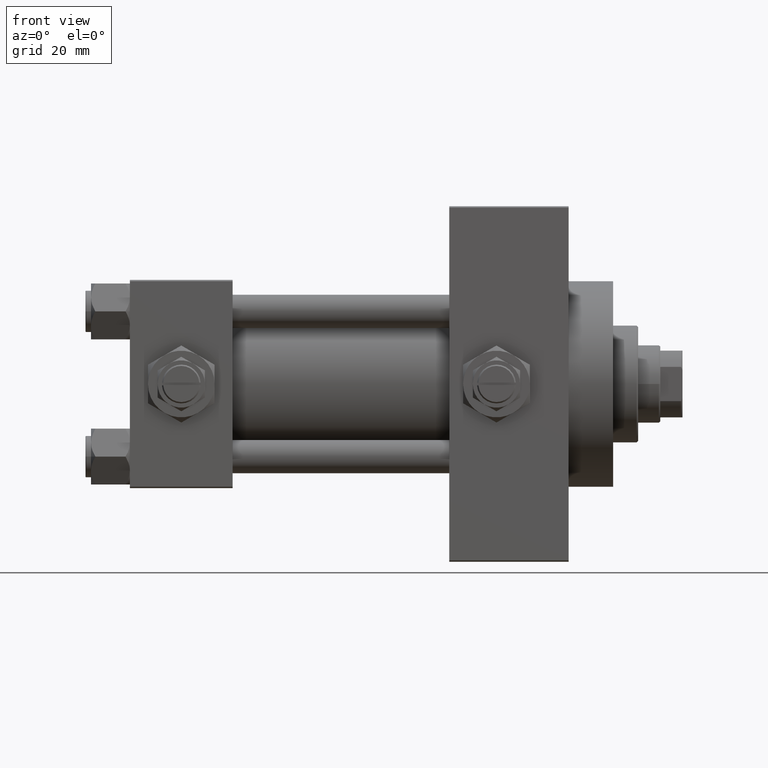
[diagram: clean part render]
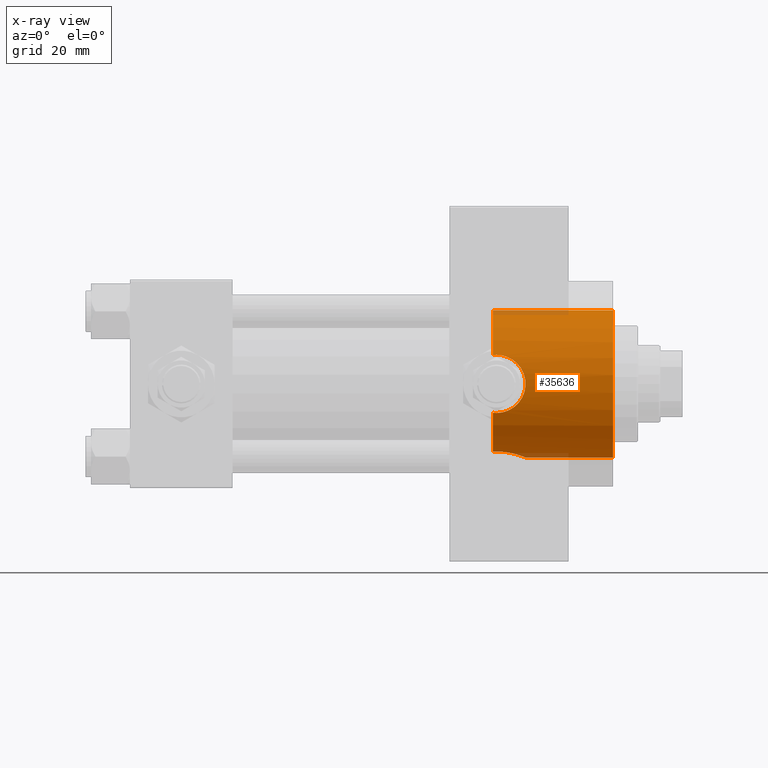
[diagram: x-ray — body ghosted, one internal face saturated and labeled with its STEP entity id]
A machine part, front view, then the same camera in x-ray: the body is ghosted and one INTERNAL B-rep face — a face not visible from any outside direction — is saturated and labeled: STEP entity #35636.
In plain terms, the highlighted cylindrical surface (partial cylindrical patch) has radius 26.5 mm, axis along (1, 0, 0).
Its self-contained STEP definition (entity closure, byte-faithful):
#663 = CARTESIAN_POINT ( 'NONE',  ( 132.6982936874238703, -24.33967132070605288, 10.47999999999998799 ) ) ;
#683 = EDGE_CURVE ( 'NONE', #21776, #11740, #10768, .T. ) ;
#907 = CARTESIAN_POINT ( 'NONE',  ( 139.8850942087586304, -25.58093385762821725, 6.936447548980003042 ) ) ;
#1154 = CARTESIAN_POINT ( 'NONE',  ( 141.5385175848663266, -26.14168889184969657, 4.354785931857517056 ) ) ;
#1799 = DIRECTION ( 'NONE',  ( 1.000000000000000000, 0.000000000000000000, 0.000000000000000000 ) ) ;
#1816 = CARTESIAN_POINT ( 'NONE',  ( 138.3983008714430412, -8.308216825530742256, -25.16494175890555596 ) ) ;
#2058 = CARTESIAN_POINT ( 'NONE',  ( 142.1654842721634111, -2.575241489874372736, -26.37710048711162969 ) ) ;
#2429 = CYLINDRICAL_SURFACE ( 'NONE', #4504, 26.50000000000000355 ) ;
#2806 = CARTESIAN_POINT ( 'NONE',  ( 135.5115735695664227, -9.881194972351261541, -24.58915736193083390 ) ) ;
#3183 = CARTESIAN_POINT ( 'NONE',  ( 137.2635990777562256, -24.90054338428140568, -9.068796382691630242 ) ) ;
#3672 = CARTESIAN_POINT ( 'NONE',  ( 134.7461877943154036, -24.48462605612511567, -10.13781324604277145 ) ) ;
#4232 = CARTESIAN_POINT ( 'NONE',  ( 174.0000000000000000, 3.245314017740486554E-15, 26.50000000000000355 ) ) ;
#4504 = AXIS2_PLACEMENT_3D ( 'NONE', #13900, #24856, #40570 ) ;
#4625 = ORIENTED_EDGE ( 'NONE', *, *, #28336, .F. ) ;
#5141 = CARTESIAN_POINT ( 'NONE',  ( 142.1219222710722647, -26.36027543327035261, 2.738055544399092600 ) ) ;
#5803 = CARTESIAN_POINT ( 'NONE',  ( 142.4011065554137758, -1.483758503940583839, -26.46850309434598003 ) ) ;
#6045 = CARTESIAN_POINT ( 'NONE',  ( 136.5335921408433251, -9.455792512420339690, -24.75606841526505519 ) ) ;
#6119 = EDGE_LOOP ( 'NONE', ( #4625, #30557, #43660, #33916, #21602, #32575, #41552, #26521, #41877 ) ) ;
#6292 = CARTESIAN_POINT ( 'NONE',  ( 141.3963988635402700, -4.655434592126345805, -26.09007526830297863 ) ) ;
#6543 = CARTESIAN_POINT ( 'NONE',  ( 135.8600678267363833, -9.750145953289925060, -24.64162310621548713 ) ) ;
#6794 = AXIS2_PLACEMENT_3D ( 'NONE', #20408, #28133, #12702 ) ;
#7411 = CARTESIAN_POINT ( 'NONE',  ( 139.6501220615577097, -25.51256335955728005, -7.170912732211439433 ) ) ;
#7897 = CARTESIAN_POINT ( 'NONE',  ( 136.3489237122697659, -24.72318467201153425, -9.541179571695405315 ) ) ;
#8116 = B_SPLINE_CURVE_WITH_KNOTS ( 'NONE', 3,
 ( #22462, #45406, #14505, #33689 ),
 .UNSPECIFIED., .F., .F.,
 ( 4, 4 ),
 ( 0.000000000000000000, 0.001255586767787714641 ),
 .UNSPECIFIED. ) ;
#8639 = CARTESIAN_POINT ( 'NONE',  ( 141.9191483855533988, -26.28308039691835774, 3.400110870430087306 ) ) ;
#9205 = DIRECTION ( 'NONE',  ( 1.000000000000000000, 0.000000000000000000, 0.000000000000000000 ) ) ;
#9451 = DIRECTION ( 'NONE',  ( 0.000000000000000000, 0.000000000000000000, -1.000000000000000000 ) ) ;
#9573 = CARTESIAN_POINT ( 'NONE',  ( 130.7400000000000091, -24.37226292324946542, -10.40398000767012299 ) ) ;
#9913 = CIRCLE ( 'NONE', #22637, 26.50000000000000355 ) ;
#10411 = CARTESIAN_POINT ( 'NONE',  ( 142.4800000000001603, 1.044554930096985600E-14, -26.50000000000006750 ) ) ;
#10768 = B_SPLINE_CURVE_WITH_KNOTS ( 'NONE', 3,
 ( #36941, #32718, #5803, #2058, #40449, #47922, #35961, #6292, #13783, #48414, #33212, #40195, #17268, #20751, #1816, #20991, #43692, #36455, #6045, #6543, #2806, #28982, #17023, #29474, #36699, #28485 ),
 .UNSPECIFIED., .F., .F.,
 ( 4, 2, 2, 2, 2, 2, 2, 2, 2, 2, 2, 2, 4 ),
 ( 0.01781170071191079049, 0.02003745927526348961, 0.02115033855693983916, 0.02226321783861619219, 0.02337609712029254175, 0.02448897640196889131, 0.02671473496532159389, 0.02782761424699794345, 0.02894049352867429648, 0.03005337281035064950, 0.03116625209202700253, 0.03339201065537962532, 0.03561776921873225504 ),
 .UNSPECIFIED. ) ;
#11398 = CARTESIAN_POINT ( 'NONE',  ( 139.8811664359166400, -25.58300917221410486, -6.916171625962123315 ) ) ;
#11648 = CARTESIAN_POINT ( 'NONE',  ( 140.5155153844949893, -25.78569419426081311, -6.118106053452856408 ) ) ;
#11740 = VERTEX_POINT ( 'NONE', #39025 ) ;
#12142 = CARTESIAN_POINT ( 'NONE',  ( 142.3935590552673602, -26.46591511510092332, -1.387412420731378715 ) ) ;
#12522 = CARTESIAN_POINT ( 'NONE',  ( 174.0000000000000000, 0.000000000000000000, -26.50000000000000355 ) ) ;
#12635 = CARTESIAN_POINT ( 'NONE',  ( 141.0679913760332624, -25.97354752128885025, 5.264851845784581208 ) ) ;
#12654 = AXIS2_PLACEMENT_3D ( 'NONE', #23986, #1799, #20487 ) ;
#12702 = DIRECTION ( 'NONE',  ( 0.000000000000000000, 0.000000000000000000, -1.000000000000000000 ) ) ;
#13150 = CARTESIAN_POINT ( 'NONE',  ( 131.1580741051582208, -24.35064928096444703, 10.45461191700780645 ) ) ;
#13783 = CARTESIAN_POINT ( 'NONE',  ( 141.2276638786151750, -4.981583166679961039, -26.02957788900645397 ) ) ;
#13900 = CARTESIAN_POINT ( 'NONE',  ( 130.7400000000000091, 0.000000000000000000, 0.000000000000000000 ) ) ;
#13946 = VECTOR ( 'NONE', #47309, 1000.000000000000000 ) ;
#14505 = CARTESIAN_POINT ( 'NONE',  ( 131.5811236364006049, -24.33967132070604933, -10.47999999999998444 ) ) ;
#14893 = CARTESIAN_POINT ( 'NONE',  ( 136.6580558779861008, -24.77960996754317691, -9.394203453174519325 ) ) ;
#15468 = EDGE_CURVE ( 'NONE', #28709, #47532, #8116, .T. ) ;
#15877 = CARTESIAN_POINT ( 'NONE',  ( 142.4114040688937735, -26.47265107862980926, 1.382412405478187001 ) ) ;
#16029 = CARTESIAN_POINT ( 'NONE',  ( 132.0000000000000000, -24.33967132070604933, 10.47999999999998799 ) ) ;
#16122 = CARTESIAN_POINT ( 'NONE',  ( 138.3864792908362631, -25.16230905708523480, 8.316254619809530624 ) ) ;
#16366 = CARTESIAN_POINT ( 'NONE',  ( 141.3916535229813576, -26.08830885934474253, 4.663043711798783519 ) ) ;
#16576 = VERTEX_POINT ( 'NONE', #23506 ) ;
#16614 = CARTESIAN_POINT ( 'NONE',  ( 134.7286532048194090, -24.48994387988090438, 10.12445329003760008 ) ) ;
#16633 = CIRCLE ( 'NONE', #12654, 26.50000000000000355 ) ;
#17023 = CARTESIAN_POINT ( 'NONE',  ( 133.7216423275558839, -10.36418010715236093, -24.38933169417625635 ) ) ;
#17268 = CARTESIAN_POINT ( 'NONE',  ( 139.5076201536012093, -7.348534936426551312, -25.46581292754183679 ) ) ;
#17633 = FACE_OUTER_BOUND ( 'NONE', #6119, .T. ) ;
#18330 = EDGE_CURVE ( 'NONE', #21776, #26977, #46587, .T. ) ;
#18867 = CARTESIAN_POINT ( 'NONE',  ( 137.5577538920436496, -24.96463143003449758, -8.891425016462831010 ) ) ;
#19162 = EDGE_CURVE ( 'NONE', #49088, #26977, #37030, .T. ) ;
#19603 = CARTESIAN_POINT ( 'NONE',  ( 142.1391112229687792, -26.36675217432884466, -2.738755341944245636 ) ) ;
#20096 = CARTESIAN_POINT ( 'NONE',  ( 136.6659000583123031, -24.77500862834707362, 9.408993987884874954 ) ) ;
#20408 = CARTESIAN_POINT ( 'NONE',  ( 174.0000000000000000, 0.000000000000000000, 0.000000000000000000 ) ) ;
#20487 = DIRECTION ( 'NONE',  ( 0.000000000000000000, 0.000000000000000000, -1.000000000000000000 ) ) ;
#20612 = CARTESIAN_POINT ( 'NONE',  ( 130.7400000000000091, -24.37226292324946186, 10.40398000767012654 ) ) ;
#20751 = CARTESIAN_POINT ( 'NONE',  ( 138.6874981071936759, -8.077221093107572969, -25.24030799844106454 ) ) ;
#20821 = CARTESIAN_POINT ( 'NONE',  ( 130.7400000000000091, 3.245314017740486554E-15, 26.50000000000000355 ) ) ;
#20991 = CARTESIAN_POINT ( 'NONE',  ( 137.8022832347253086, -8.734885810676995987, -25.02004257437574708 ) ) ;
#21602 = ORIENTED_EDGE ( 'NONE', *, *, #683, .T. ) ;
#21776 = VERTEX_POINT ( 'NONE', #10411 ) ;
#21947 = VERTEX_POINT ( 'NONE', #20821 ) ;
#22113 = CARTESIAN_POINT ( 'NONE',  ( 132.6904960883777846, -24.33967132070604578, -10.47999999999998622 ) ) ;
#22462 = CARTESIAN_POINT ( 'NONE',  ( 130.7400000000000091, -24.37226292324946542, -10.40398000767012299 ) ) ;
#22637 = AXIS2_PLACEMENT_3D ( 'NONE', #28147, #9205, #9451 ) ;
#23506 = CARTESIAN_POINT ( 'NONE',  ( 130.7400000000000091, -24.37226292324946186, 10.40398000767012654 ) ) ;
#23830 = CARTESIAN_POINT ( 'NONE',  ( 138.9147507852791534, -25.30155050139244111, 7.882476147205575323 ) ) ;
#23986 = CARTESIAN_POINT ( 'NONE',  ( 130.7400000000000091, 0.000000000000000000, 0.000000000000000000 ) ) ;
#24080 = CARTESIAN_POINT ( 'NONE',  ( 142.4626037639855838, -26.49310609510638770, -0.6963515910539429532 ) ) ;
#24357 = CARTESIAN_POINT ( 'NONE',  ( 132.0000000000000000, -24.33967132070604933, 10.47999999999998799 ) ) ;
#24856 = DIRECTION ( 'NONE',  ( 1.000000000000000000, -0.000000000000000000, -0.000000000000000000 ) ) ;
#26005 = B_SPLINE_CURVE_WITH_KNOTS ( 'NONE', 3,
 ( #41071, #22113, #37570, #3672, #37321, #7897, #14893, #3183, #18867, #45792, #26342, #7411, #11398, #26582, #11648, #41793, #42043, #39291, #19603, #31324, #12142, #24080, #47017, #34816, #15877, #42789, #5141, #8639, #27079, #1154, #16366, #12635, #43035, #31576, #907, #46776, #23830, #16122, #30831, #46280, #20096, #35311, #46040, #16614, #28068, #39046, #663, #27822 ),
 .UNSPECIFIED., .F., .F.,
 ( 4, 2, 2, 2, 2, 2, 2, 2, 2, 2, 2, 2, 2, 2, 2, 2, 2, 2, 2, 2, 2, 2, 2, 4 ),
 ( 0.001255586767787714641, 0.003325356817179755085, 0.005395126866571796180, 0.006430011891267852289, 0.007464896915963908398, 0.009534666965355952095, 0.01056955199005197438, 0.01160443701474799492, 0.01367420706413999265, 0.01574397711353198864, 0.01677886213822798664, 0.01781374716292398463, 0.01988351721231598410, 0.02091840223701198556, 0.02195328726170798356, 0.02298817228640397808, 0.02402305731109997608, 0.02609282736049197207, 0.02712771238518797007, 0.02816259740988396806, 0.03023236745927596406, 0.03126725248397199675, 0.03230213750866803291, 0.03437190755806009829 ),
 .UNSPECIFIED. ) ;
#26342 = CARTESIAN_POINT ( 'NONE',  ( 138.9276451403626993, -25.30216499957183984, -7.893159106980509598 ) ) ;
#26521 = ORIENTED_EDGE ( 'NONE', *, *, #40664, .T. ) ;
#26582 = CARTESIAN_POINT ( 'NONE',  ( 140.3132647636415413, -25.71940794313461254, -6.390292897823897533 ) ) ;
#26977 = VERTEX_POINT ( 'NONE', #12522 ) ;
#27079 = CARTESIAN_POINT ( 'NONE',  ( 141.8022638174866472, -26.23907308479209988, 3.723318718764343949 ) ) ;
#27822 = CARTESIAN_POINT ( 'NONE',  ( 132.0000000000000000, -24.33967132070604933, 10.47999999999998799 ) ) ;
#28068 = CARTESIAN_POINT ( 'NONE',  ( 134.3947302122628287, -24.45488967133339386, 10.20851256290625741 ) ) ;
#28133 = DIRECTION ( 'NONE',  ( 1.000000000000000000, 0.000000000000000000, 0.000000000000000000 ) ) ;
#28147 = CARTESIAN_POINT ( 'NONE',  ( 130.7400000000000091, 0.000000000000000000, 0.000000000000000000 ) ) ;
#28336 = EDGE_CURVE ( 'NONE', #21947, #16576, #9913, .T. ) ;
#28485 = CARTESIAN_POINT ( 'NONE',  ( 130.7400000000000091, -10.40398000767012832, -24.37226292324946186 ) ) ;
#28709 = VERTEX_POINT ( 'NONE', #9573 ) ;
#28982 = CARTESIAN_POINT ( 'NONE',  ( 134.4459359432478323, -10.21777125531389174, -24.45211332338677579 ) ) ;
#29474 = CARTESIAN_POINT ( 'NONE',  ( 132.2451057705677329, -10.50334255171939013, -24.32972513250578928 ) ) ;
#30557 = ORIENTED_EDGE ( 'NONE', *, *, #48554, .T. ) ;
#30831 = CARTESIAN_POINT ( 'NONE',  ( 138.1110651716822701, -25.09360970262139645, 8.520611273842991551 ) ) ;
#31020 = DIRECTION ( 'NONE',  ( 1.000000000000000000, -0.000000000000000000, -0.000000000000000000 ) ) ;
#31324 = CARTESIAN_POINT ( 'NONE',  ( 142.3421836049517140, -26.44572692659851754, -1.728475508984261610 ) ) ;
#31519 = LINE ( 'NONE', #45987, #39041 ) ;
#31576 = CARTESIAN_POINT ( 'NONE',  ( 140.3165002292777785, -25.71874665637611912, 6.413821170274206729 ) ) ;
#31611 = VERTEX_POINT ( 'NONE', #16029 ) ;
#32114 = CARTESIAN_POINT ( 'NONE',  ( 130.7400000000000091, 0.000000000000000000, -26.50000000000000355 ) ) ;
#32575 = ORIENTED_EDGE ( 'NONE', *, *, #41397, .F. ) ;
#32718 = CARTESIAN_POINT ( 'NONE',  ( 142.4800000000000466, -0.7466733969459936615, -26.50000000000001421 ) ) ;
#33212 = CARTESIAN_POINT ( 'NONE',  ( 140.6508763872861323, -5.926808359427509387, -25.83050513016100069 ) ) ;
#33689 = CARTESIAN_POINT ( 'NONE',  ( 132.0000000000000000, -24.33967132070604933, -10.47999999999998444 ) ) ;
#33916 = ORIENTED_EDGE ( 'NONE', *, *, #18330, .F. ) ;
#34774 = EDGE_CURVE ( 'NONE', #31611, #16576, #40853, .T. ) ;
#34816 = CARTESIAN_POINT ( 'NONE',  ( 142.4798633477534224, -26.49994595790487750, 0.6963870350870441372 ) ) ;
#35311 = CARTESIAN_POINT ( 'NONE',  ( 135.7173844672076939, -24.61993612039166024, 9.804529592362708712 ) ) ;
#35636 = ADVANCED_FACE ( 'NONE', ( #17633 ), #2429, .F. ) ;
#35961 = CARTESIAN_POINT ( 'NONE',  ( 141.6993435614955956, -3.985990130492289563, -26.20070574291654353 ) ) ;
#36455 = CARTESIAN_POINT ( 'NONE',  ( 136.8603660912149849, -9.291949300782544441, -24.81826977973610937 ) ) ;
#36699 = CARTESIAN_POINT ( 'NONE',  ( 131.4868983507927283, -10.49443499905852661, -24.33364968799253703 ) ) ;
#36941 = CARTESIAN_POINT ( 'NONE',  ( 142.4800000000001603, 1.044554930096985600E-14, -26.50000000000006750 ) ) ;
#37030 = CIRCLE ( 'NONE', #6794, 26.50000000000000355 ) ;
#37321 = CARTESIAN_POINT ( 'NONE',  ( 135.4024368383432204, -24.56844862672226881, -9.935854460437951730 ) ) ;
#37570 = CARTESIAN_POINT ( 'NONE',  ( 133.3786097457406470, -24.36915941385105100, -10.41231194222668321 ) ) ;
#39025 = CARTESIAN_POINT ( 'NONE',  ( 130.7400000000000091, -10.40398000767012832, -24.37226292324946186 ) ) ;
#39041 = VECTOR ( 'NONE', #31020, 1000.000000000000000 ) ;
#39046 = CARTESIAN_POINT ( 'NONE',  ( 133.3839948142214951, -24.36973996242157980, 10.41091756284551728 ) ) ;
#39291 = CARTESIAN_POINT ( 'NONE',  ( 141.9389570606566053, -26.28956209411558476, -3.395175965175881938 ) ) ;
#39578 = CARTESIAN_POINT ( 'NONE',  ( 131.5796744023297435, -24.33967132070604933, 10.47999999999998799 ) ) ;
#40195 = CARTESIAN_POINT ( 'NONE',  ( 139.9981355541606547, -6.811571481472481260, -25.61680511670812876 ) ) ;
#40449 = CARTESIAN_POINT ( 'NONE',  ( 142.0665133812162537, -2.938253791439163987, -26.33899517628734088 ) ) ;
#40570 = DIRECTION ( 'NONE',  ( 0.000000000000000000, 0.000000000000000000, -1.000000000000000000 ) ) ;
#40664 = EDGE_CURVE ( 'NONE', #47532, #31611, #26005, .T. ) ;
#40853 = B_SPLINE_CURVE_WITH_KNOTS ( 'NONE', 3,
 ( #24357, #39578, #13150, #20612 ),
 .UNSPECIFIED., .F., .F.,
 ( 4, 4 ),
 ( 0.03437190755806009829, 0.03561776921873222035 ),
 .UNSPECIFIED. ) ;
#41071 = CARTESIAN_POINT ( 'NONE',  ( 132.0000000000000000, -24.33967132070604933, -10.47999999999998444 ) ) ;
#41397 = EDGE_CURVE ( 'NONE', #28709, #11740, #16633, .T. ) ;
#41552 = ORIENTED_EDGE ( 'NONE', *, *, #15468, .T. ) ;
#41793 = CARTESIAN_POINT ( 'NONE',  ( 141.0816778311290136, -25.97633853132261450, -5.273786452924785983 ) ) ;
#41877 = ORIENTED_EDGE ( 'NONE', *, *, #34774, .T. ) ;
#42043 = CARTESIAN_POINT ( 'NONE',  ( 141.4057128516256228, -26.09263577897064224, -4.673612418766440513 ) ) ;
#42789 = CARTESIAN_POINT ( 'NONE',  ( 142.2075249541714754, -26.39335609204158573, 2.399236127628234794 ) ) ;
#42925 = CARTESIAN_POINT ( 'NONE',  ( 132.0000000000000000, -24.33967132070604933, -10.47999999999998444 ) ) ;
#43035 = CARTESIAN_POINT ( 'NONE',  ( 140.8904987776702455, -25.91192981801192730, 5.559420023815748735 ) ) ;
#43660 = ORIENTED_EDGE ( 'NONE', *, *, #19162, .T. ) ;
#43692 = CARTESIAN_POINT ( 'NONE',  ( 137.4947120380321905, -8.931495953537146093, -24.95025484238639990 ) ) ;
#45406 = CARTESIAN_POINT ( 'NONE',  ( 131.1611364518797984, -24.35049096341793273, -10.45498279016080012 ) ) ;
#45792 = CARTESIAN_POINT ( 'NONE',  ( 138.4049404352971351, -25.16229795609818609, -8.322848467437516717 ) ) ;
#45987 = CARTESIAN_POINT ( 'NONE',  ( 130.7400000000000091, 3.245314017740486554E-15, 26.50000000000000355 ) ) ;
#46040 = CARTESIAN_POINT ( 'NONE',  ( 135.3904700717597223, -24.57248644795726022, 9.922439993611760656 ) ) ;
#46280 = CARTESIAN_POINT ( 'NONE',  ( 137.2636119660473923, -24.89625137302611080, 9.087734872939162045 ) ) ;
#46587 = LINE ( 'NONE', #32114, #13946 ) ;
#46776 = CARTESIAN_POINT ( 'NONE',  ( 139.1663633815065566, -25.37171319999175623, 7.654298772871978684 ) ) ;
#47017 = CARTESIAN_POINT ( 'NONE',  ( 142.4800680225663712, -26.50002690099940494, -0.3451042088078350445 ) ) ;
#47309 = DIRECTION ( 'NONE',  ( 1.000000000000000000, -0.000000000000000000, -0.000000000000000000 ) ) ;
#47532 = VERTEX_POINT ( 'NONE', #42925 ) ;
#47922 = CARTESIAN_POINT ( 'NONE',  ( 141.8335546017134448, -3.642695553053290958, -26.25084325021122922 ) ) ;
#48414 = CARTESIAN_POINT ( 'NONE',  ( 140.8553297434205831, -5.616857363200505660, -25.89992295911058307 ) ) ;
#48554 = EDGE_CURVE ( 'NONE', #21947, #49088, #31519, .T. ) ;
#49088 = VERTEX_POINT ( 'NONE', #4232 ) ;